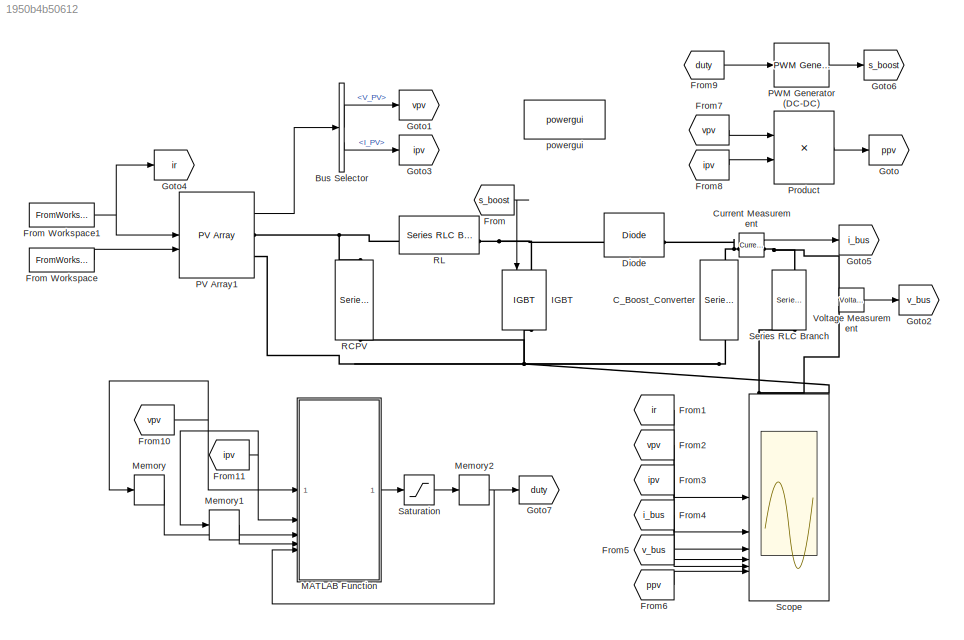
MODEL slx_1950b4b50612
KIND model
CONFIG AbsTol = auto
CONFIG EnableMultiTasking = off
CONFIG FixedStep = auto
CONFIG MaxStep = auto
CONFIG MinStep = auto
CONFIG RelTol = 1e-3
CONFIG SampleTimeConstraint = Unconstrained
CONFIG SolverName = ode23tb
CONFIG StartTime = 0.0
CONFIG StopTime = 5
BLOCK [BusSelector] Bus Selector
  OutputSignals = V_PV,I_PV
BLOCK [Reference] C_Boost_Converter  REF=spsSeriesRLCBranchLib/Series RLC Branch
  LibrarySourceBlock = sps_lib/Passives/Series RLC Branch
  NameLocation = left
  SourceBlock = spsSeriesRLCBranchLib/Series RLC Branch
  SourceType = Series RLC Branch
BLOCK [Reference] Current Measurement  REF=spsCurrentMeasurementLib/Current Measurement
  LibrarySourceBlock = sps_lib/Sensors and Measurements/Current Measurement
  SourceBlock = spsCurrentMeasurementLib/Current Measurement
  SourceType = Current Measurement
  UserDataPersistent = on
BLOCK [Reference] Diode  REF=spsDiodeLib/Diode
  LibrarySourceBlock = sps_lib/Power Electronics/Diode
  SourceBlock = spsDiodeLib/Diode
  SourceType = Diode
BLOCK [From] From
  GotoTag = s_boost
BLOCK [FromWorkspace] From Workspace
  VariableName = temperature
BLOCK [FromWorkspace] From Workspace1
  VariableName = irradiance
BLOCK [From] From1
  GotoTag = ir
  TagVisibility = global
BLOCK [From] From10
  GotoTag = vpv
  TagVisibility = global
BLOCK [From] From11
  GotoTag = ipv
  TagVisibility = global
BLOCK [From] From2
  GotoTag = vpv
  TagVisibility = global
BLOCK [From] From3
  GotoTag = ipv
  TagVisibility = global
BLOCK [From] From4
  GotoTag = i_bus
  TagVisibility = global
BLOCK [From] From5
  GotoTag = v_bus
  TagVisibility = global
BLOCK [From] From6
  GotoTag = ppv
BLOCK [From] From7
  GotoTag = vpv
  TagVisibility = global
BLOCK [From] From8
  GotoTag = ipv
  TagVisibility = global
BLOCK [From] From9
  GotoTag = duty
BLOCK [Goto] Goto
  GotoTag = ppv
BLOCK [Goto] Goto1
  GotoTag = vpv
  TagVisibility = global
BLOCK [Goto] Goto2
  GotoTag = v_bus
  TagVisibility = global
BLOCK [Goto] Goto3
  GotoTag = ipv
  TagVisibility = global
BLOCK [Goto] Goto4
  GotoTag = ir
  TagVisibility = global
BLOCK [Goto] Goto5
  GotoTag = i_bus
  TagVisibility = global
BLOCK [Goto] Goto6
  GotoTag = s_boost
BLOCK [Goto] Goto7
  GotoTag = duty
BLOCK [Reference] IGBT  REF=spsIGBTLib/IGBT
  LibrarySourceBlock = sps_lib/Power Electronics/IGBT
  NameLocation = left
  SourceBlock = spsIGBTLib/IGBT
  SourceType = IGBT
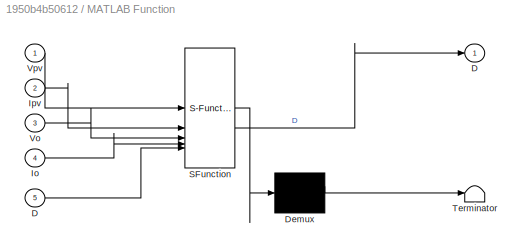
BLOCK [SubSystem] MATLAB Function
  ErrorFcn = Stateflow.Translate.translate
  LibrarySourceBlock = simulink/User-Defined\nFunctions/MATLAB Function
  PermitHierarchicalResolution = ExplicitOnly
  SFBlockType = MATLAB Function
  TreatAsAtomicUnit = on
BLOCK [Demux] MATLAB Function/ Demux 
  Outputs = 1
BLOCK [S-Function] MATLAB Function/ SFunction 
  EnableBusSupport = on
  FunctionName = sf_sfun
  PortCounts = [5 2]
  SFcnIsStateOwnerBlock = off
  SFunctionDeploymentMode = off
  Tag = Stateflow S-Function 2
BLOCK [Terminator] MATLAB Function/ Terminator 
BLOCK [Outport] MATLAB Function/D
BLOCK [Inport] MATLAB Function/D 
  Port = 5
BLOCK [Inport] MATLAB Function/Io
  Port = 4
BLOCK [Inport] MATLAB Function/Ipv
  Port = 2
BLOCK [Inport] MATLAB Function/Vo
  Port = 3
BLOCK [Inport] MATLAB Function/Vpv
BLOCK [Memory] Memory
BLOCK [Memory] Memory1
BLOCK [Memory] Memory2
BLOCK [Reference] PV Array1  REF=spsPVArrayLib/PV Array
  LibrarySourceBlock = sps_lib/Sources/PV Array
  SourceBlock = spsPVArrayLib/PV Array
  SourceType = PV array
BLOCK [Reference] PWM Generator (DC-DC)  REF=spsPWMGeneratorDCDCLib/PWM Generator
(DC-DC)
  LibrarySourceBlock = sps_lib/Power Electronics/Power Electronics Control/PWM Generator\n(DC-DC)
  SourceBlock = spsPWMGeneratorDCDCLib/PWM Generator\n(DC-DC)
  SourceType = PWM Generator (DC-DC)
BLOCK [Product] Product
BLOCK [Reference] RCPV  REF=spsSeriesRLCBranchLib/Series RLC Branch
  LibrarySourceBlock = sps_lib/Passives/Series RLC Branch
  NameLocation = left
  SourceBlock = spsSeriesRLCBranchLib/Series RLC Branch
  SourceType = Series RLC Branch
BLOCK [Reference] RL  REF=spsSeriesRLCBranchLib/Series RLC Branch
  LibrarySourceBlock = sps_lib/Passives/Series RLC Branch
  SourceBlock = spsSeriesRLCBranchLib/Series RLC Branch
  SourceType = Series RLC Branch
BLOCK [Saturate] Saturation
  LowerLimit = 0
  UpperLimit = 0.9
BLOCK [Scope] Scope
  Floating = off
  NumInputPorts = 6
  ScopeSpecificationString = Simulink.scopes.TimeScopeBlockCfg('CurrentConfiguration', extmgr.ConfigurationSet(extmgr.Configuration('Core','General UI',true),extmgr.Configuration('Core','Source UI',true),extmgr.Configuration('Sources','WiredSimulink',true),extmgr.Configuration('Visuals','Time Domain',true,'SerializedDisplays',{struct('MinYLimReal','-124.12435','MaxYLimReal','1117.11914','YLabelReal','','MinYLimMag',' 0.00000'...<+4964ch>
BLOCK [Reference] Series RLC Branch  REF=spsSeriesRLCBranchLib/Series RLC Branch
  LibrarySourceBlock = sps_lib/Passives/Series RLC Branch
  NameLocation = left
  SourceBlock = spsSeriesRLCBranchLib/Series RLC Branch
  SourceType = Series RLC Branch
BLOCK [Reference] Voltage Measurement  REF=spsVoltageMeasurementLib/Voltage Measurement
  LibrarySourceBlock = sps_lib/Sensors and Measurements/Voltage Measurement
  SourceBlock = spsVoltageMeasurementLib/Voltage Measurement
  SourceType = Voltage Measurement
  UserDataPersistent = on
BLOCK [Reference] powergui  REF=sps_lib/powergui
  Priority = 1
  SourceBlock = sps_lib/powergui
  SourceType = PSB option menu block
LINE Bus Selector:1 -> Goto1:1
LINE Bus Selector:2 -> Goto3:1
LINE Current Measurement:1 -> Goto5:1
NET From Workspace1:1 -> Goto4:1, PV Array1:1
LINE From Workspace:1 -> PV Array1:2
NET From10:1 -> MATLAB Function:1, Memory:1
NET From11:1 -> MATLAB Function:2, Memory1:1
LINE From1:1 -> Scope:1
LINE From2:1 -> Scope:2
LINE From3:1 -> Scope:3
LINE From4:1 -> Scope:4
LINE From5:1 -> Scope:5
LINE From6:1 -> Scope:6
LINE From7:1 -> Product:1
LINE From8:1 -> Product:2
LINE From9:1 -> PWM Generator (DC-DC):1
LINE From:1 -> IGBT:1
LINE MATLAB Function:1 -> Saturation:1
LINE Memory1:1 -> MATLAB Function:4
NET Memory2:1 -> Goto7:1, MATLAB Function:5
LINE Memory:1 -> MATLAB Function:3
LINE PV Array1:1 -> Bus Selector:1
LINE PWM Generator (DC-DC):1 -> Goto6:1
LINE Product:1 -> Goto:1
LINE Saturation:1 -> Memory2:1
LINE Voltage Measurement:1 -> Goto2:1
PNET net1: C_Boost_Converter:LConn1 -- Current Measurement:LConn1 -- Diode:RConn1
PNET net2: C_Boost_Converter:RConn1 -- IGBT:RConn1 -- PV Array1:RConn2 -- RCPV:RConn1 -- Series RLC Branch:RConn1 -- Voltage Measurement:LConn2
PNET net3: Current Measurement:RConn1 -- Series RLC Branch:LConn1 -- Voltage Measurement:LConn1
PNET net4: Diode:LConn1 -- IGBT:LConn1 -- RL:RConn1
PNET net5: PV Array1:RConn1 -- RCPV:LConn1 -- RL:LConn1
note: NET lines group one-source signal fan-out (src -> all destinations, sorted); 1:1 wires keep LINE; PNET lines group multi-terminal physical nets as a canonical sorted terminal list (undirected conserving connections); 2-terminal nets keep the pairwise PLINE form
CHART MATLAB Function states=1 transitions=1
  STATE_LABEL 'eML_blk_kernel()'
  STATE_LABEL 'SCRIPT:\nfunction D = IncCond(Vpv, Ipv, Vo, Io, D)\n\ndv=Vpv-Vo;\ndi=Ipv-Io;\nd=0.00005;\n\nif dv == 0\n    if di == 0\n        m=D;\n    else\n        m=D+d;\n    end\nelse\n    if di/dv == -Ipv/Vpv\n        m=D;\n    else \n        if di/dv > -Ipv/Vpv\n            m=D-d;\n        else\n            m=D+d;\n        end\n    end\n\nend\nD=m;\nend\n\n'
CHART  states=0 transitions=0
